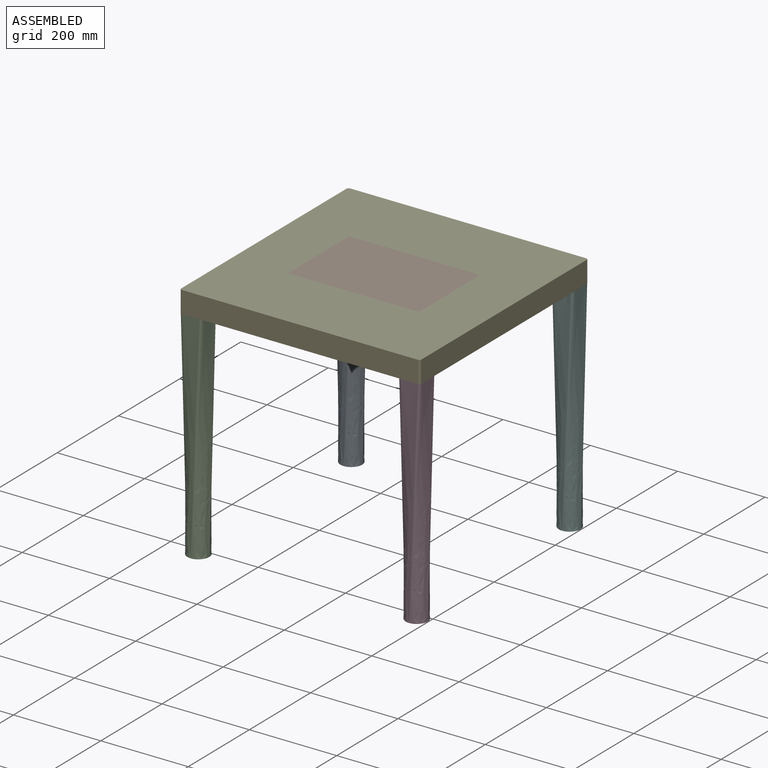
[diagram: assembled view]
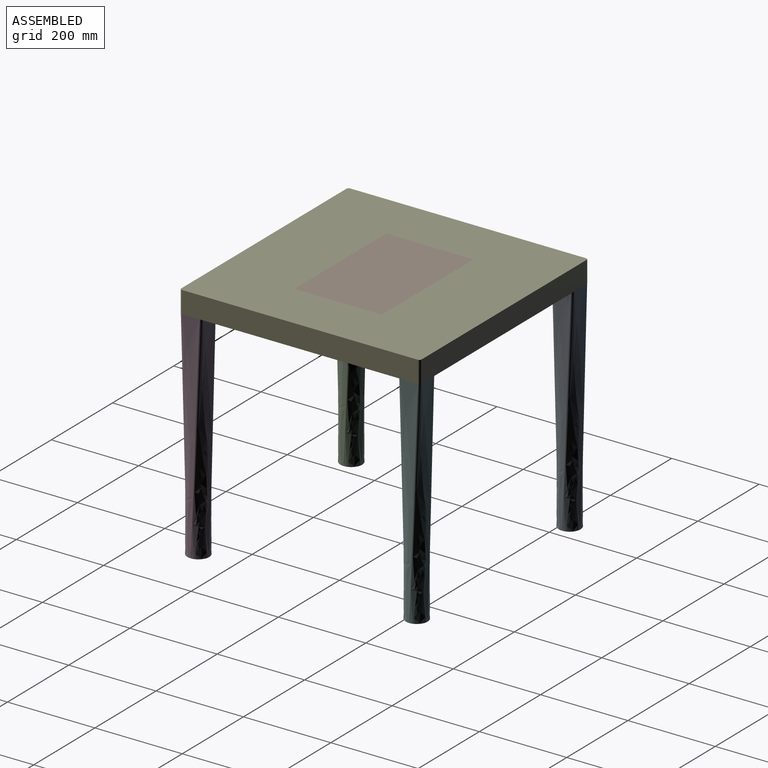
[diagram: assembled view, second angle]
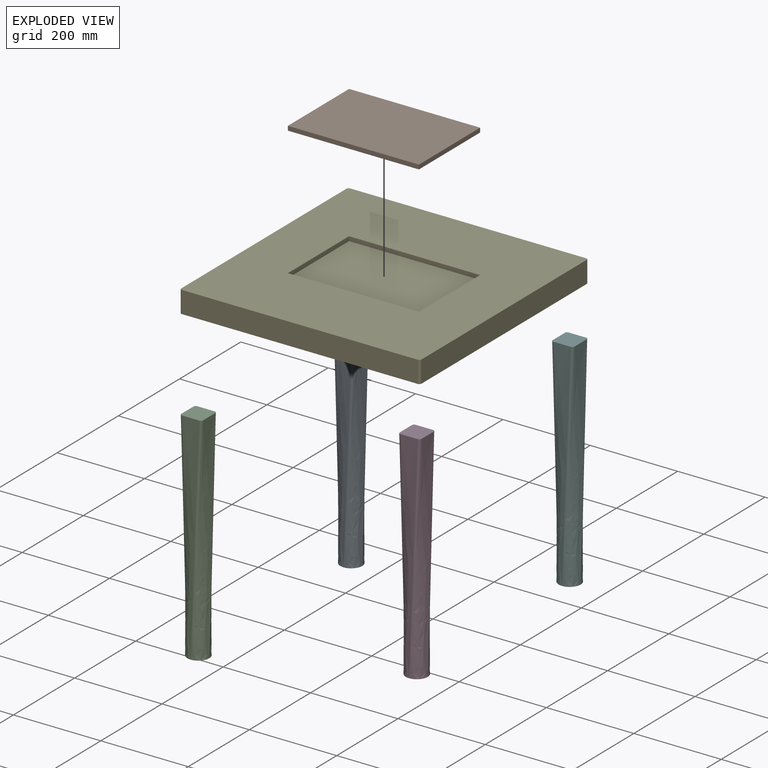
[diagram: exploded view]
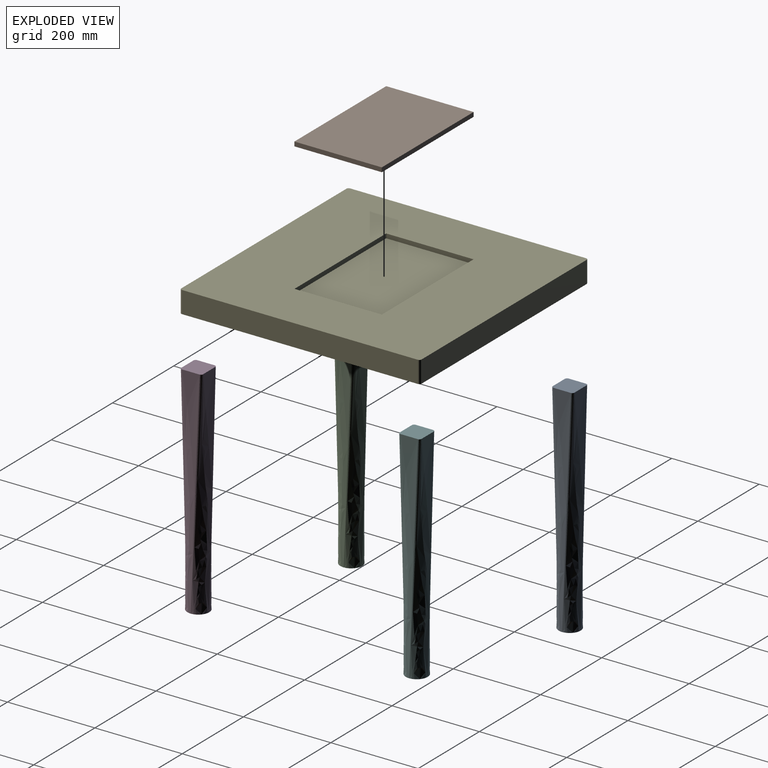
[diagram: exploded view, second angle]
ASSEMBLY  parts=6 mates=5
PART A: 10 faces, bbox 54.3x54.3x542.2 mm
  f0: plane 50x50mm, normal (0,0,-1), area 1963.5mm2, adj f2,f3,f4,f5
  f1: plane 50.2x50.2mm, normal (0,0,1), area 2478.5mm2, adj f2,f3,f4,f5,f6,f7,f8,f9
  f2: bspline ~500x50mm, area 18753.1mm2, adj f0,f1,f8,f9
  f3: bspline ~500x50mm, area 18753.1mm2, adj f0,f1,f7,f8
  f4: bspline ~500x50mm, area 18753.1mm2, adj f0,f1,f6,f7
  f5: bspline ~500x50mm, area 18753.1mm2, adj f0,f1,f6,f9
  f6: bspline ~541.98x27.07mm, area 1493.1mm2, adj f1,f4,f5
  f7: bspline ~541.98x27.07mm, area 1493.1mm2, adj f1,f3,f4
  f8: bspline ~541.98x27.07mm, area 1493.1mm2, adj f1,f2,f3
  f9: bspline ~541.98x27.07mm, area 1493.1mm2, adj f1,f2,f5
PART B: 6 faces, bbox 300x200x10 mm
  f0: plane 300x10mm, normal (0,1,0), area 3000mm2, adj f1,f3,f4,f5
  f1: plane 200x10mm, normal (-1,0,0), area 2000mm2, adj f0,f2,f4,f5
  f2: plane 300x10mm, normal (0,-1,0), area 3000mm2, adj f1,f3,f4,f5
  f3: plane 200x10mm, normal (1,0,0), area 2000mm2, adj f0,f2,f4,f5
  f4: plane 300x200mm, normal (0,0,1), area 60000mm2, adj f0,f1,f2,f3
  f5: plane 300x200mm, normal (0,0,-1), area 60000mm2, adj f0,f1,f2,f3
PART C: same geometry as A
PART D: same geometry as A
PART E: 15 faces, bbox 550x550x50 mm
  f0: plane 550x550mm, normal (0,0,1), area 242478.5mm2, adj f1,f2,f3,f4,f6,f7,f8,f9
  f1: plane 540x50mm, normal (0,-1,0), area 27000mm2, adj f0,f5,f6,f9
  f2: plane 540x50mm, normal (1,0,0), area 27000mm2, adj f0,f5,f6,f7
  f3: plane 540x50mm, normal (0,1,0), area 27000mm2, adj f0,f5,f7,f8
  f4: plane 540x50mm, normal (-1,0,0), area 27000mm2, adj f0,f5,f8,f9
  f5: plane 550x550mm, normal (0,0,-1), area 302478.5mm2, adj f1,f2,f3,f4,f6,f7,f8,f9
  f6: cylinder r=5mm len=50mm, axis (0,0,-1), area 392.7mm2, adj f0,f1,f2,f5
  f7: cylinder r=5mm len=50mm, axis (0,0,1), area 392.7mm2, adj f0,f2,f3,f5
  f8: cylinder r=5mm len=50mm, axis (0,0,-1), area 392.7mm2, adj f0,f3,f4,f5
  f9: cylinder r=5mm len=50mm, axis (0,0,1), area 392.7mm2, adj f0,f1,f4,f5
  f10: plane 300x10mm, normal (0,1,0), area 3000mm2, adj f0,f11,f13,f14
  f11: plane 200x10mm, normal (-1,0,0), area 2000mm2, adj f0,f10,f12,f14
  f12: plane 300x10mm, normal (0,-1,0), area 3000mm2, adj f0,f11,f13,f14
  f13: plane 200x10mm, normal (1,0,0), area 2000mm2, adj f0,f10,f12,f14
  f14: plane 300x200mm, normal (0,0,1), area 60000mm2, adj f10,f11,f12,f13
PART F: same geometry as A
PLACE A t=(-650.71,-108.71,-195.05)mm
PLACE B t=(-400.71,-358.71,344.95)mm
PLACE C t=(-650.71,-608.71,-195.05)mm
PLACE D t=(-150.71,-608.71,-195.05)mm
PLACE E t=(-400.71,-358.71,304.95)mm fixed
PLACE F t=(-150.71,-108.71,-195.05)mm
MATE fastened C.f1 <-> E.f5  axis (0,0,1) through (-670.71,-633.71,304.95)mm
MATE fastened D.f1 <-> E.f5  axis (0,0,1) through (-125.71,-628.71,304.95)mm
MATE fastened F.f1 <-> E.f5  axis (0,0,1) through (-130.71,-83.71,304.95)mm
MATE fastened A.f1 <-> E.f5  axis (0,0,1) through (-675.71,-88.71,304.95)mm
MATE fastened B.f5 <-> E.f14  axis (0,0,-1) through (-400.71,-358.71,344.95)mm
